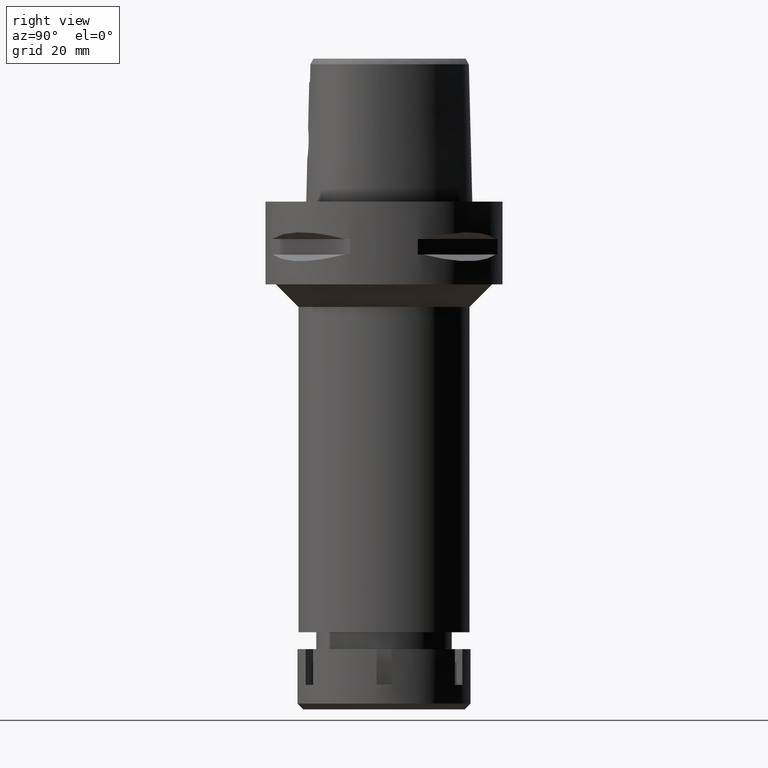
[diagram: clean part render]
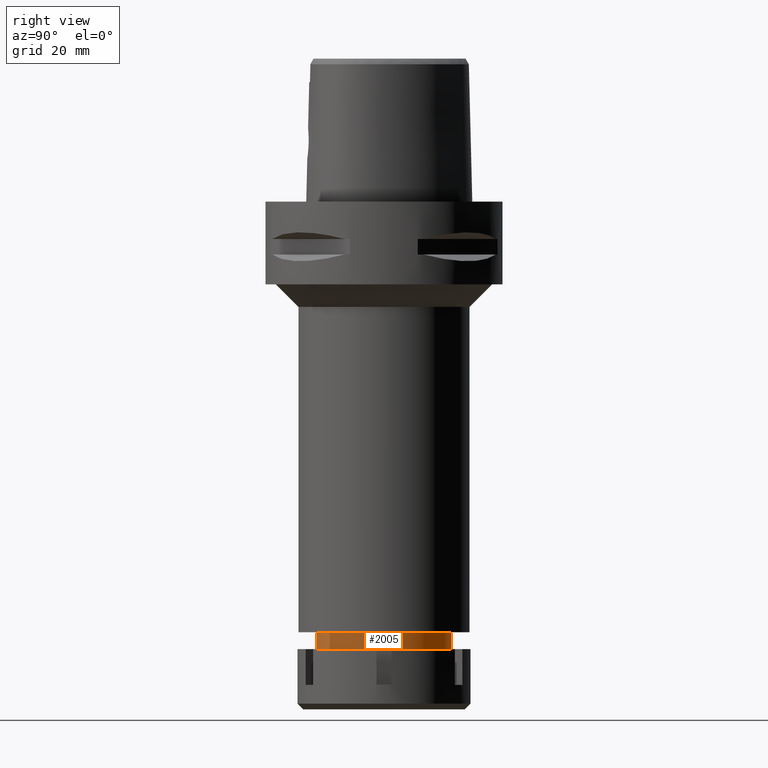
[diagram: same view with one face highlighted and labeled with its STEP entity id]
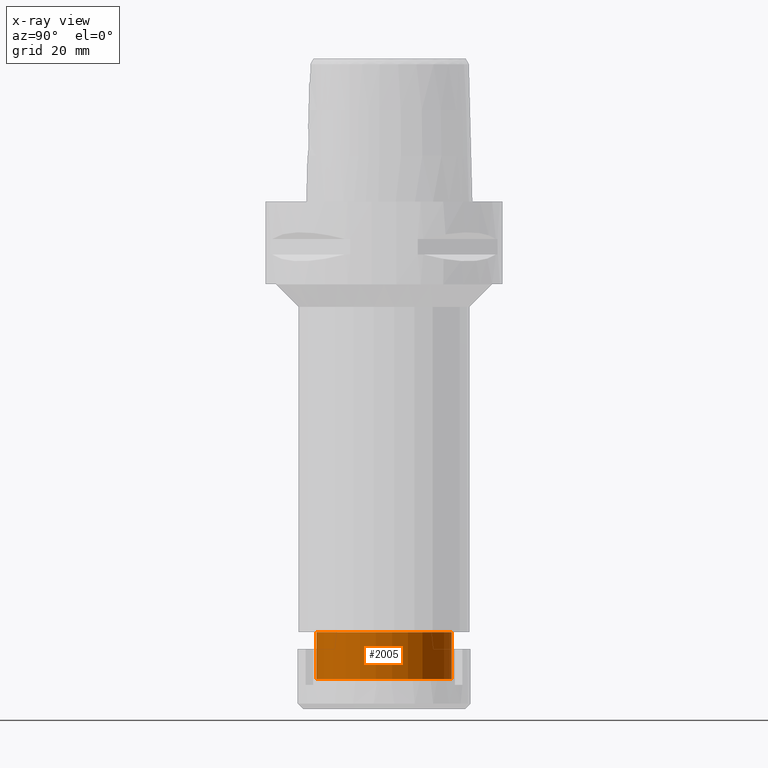
[diagram: x-ray of the same camera — body ghosted, the highlighted face saturated]
A machine part, right view. The second image highlights one B-rep face of the part: STEP entity #2005.
The next image is the same camera in x-ray: the body ghosted, the highlighted face saturated — about 0% of this face is hidden behind the body in this view.
In plain terms, the highlighted cylindrical surface (partial cylindrical patch) has radius 18 mm, axis along (0, 0, -1).
Its self-contained STEP definition (entity closure, byte-faithful):
#22 = CARTESIAN_POINT ( 'NONE',  ( 0.0000000000000000000, 18.00000000000000000, -127.0000000000000000 ) ) ;
#35 = CARTESIAN_POINT ( 'NONE',  ( 0.0000000000000000000, 1.302411870892999789E-14, 6.349999999999999645 ) ) ;
#73 = EDGE_CURVE ( 'NONE', #3236, #3060, #4172, .T. ) ;
#370 = EDGE_CURVE ( 'NONE', #1342, #3977, #5342, .T. ) ;
#809 = CARTESIAN_POINT ( 'NONE',  ( 0.0000000000000000000, -18.00000000000000000, -114.5000000000000000 ) ) ;
#840 = DIRECTION ( 'NONE',  ( 0.0000000000000000000, 0.0000000000000000000, -1.000000000000000000 ) ) ;
#897 = CYLINDRICAL_SURFACE ( 'NONE', #1059, 18.00000000000000000 ) ;
#1059 = AXIS2_PLACEMENT_3D ( 'NONE', #35, #5035, #1186 ) ;
#1186 = DIRECTION ( 'NONE',  ( 0.0000000000000000000, -1.000000000000000000, 0.0000000000000000000 ) ) ;
#1232 = DIRECTION ( 'NONE',  ( 0.0000000000000000000, 1.000000000000000000, 0.0000000000000000000 ) ) ;
#1262 = CARTESIAN_POINT ( 'NONE',  ( 0.0000000000000000000, -18.00000000000000000, -127.0000000000000000 ) ) ;
#1342 = VERTEX_POINT ( 'NONE', #1262 ) ;
#1423 = DIRECTION ( 'NONE',  ( 0.0000000000000000000, 0.0000000000000000000, -1.000000000000000000 ) ) ;
#1659 = FACE_OUTER_BOUND ( 'NONE', #3521, .T. ) ;
#2005 = ADVANCED_FACE ( 'NONE', ( #1659 ), #897, .T. ) ;
#2258 = CARTESIAN_POINT ( 'NONE',  ( 0.0000000000000000000, 18.00000000000000000, -114.5000000000000000 ) ) ;
#2268 = LINE ( 'NONE', #3573, #5435 ) ;
#3060 = VERTEX_POINT ( 'NONE', #809 ) ;
#3236 = VERTEX_POINT ( 'NONE', #2258 ) ;
#3313 = EDGE_CURVE ( 'NONE', #3236, #3977, #5279, .T. ) ;
#3395 = ORIENTED_EDGE ( 'NONE', *, *, #73, .T. ) ;
#3464 = ORIENTED_EDGE ( 'NONE', *, *, #3313, .F. ) ;
#3521 = EDGE_LOOP ( 'NONE', ( #3395, #4529, #4972, #3464 ) ) ;
#3573 = CARTESIAN_POINT ( 'NONE',  ( 0.0000000000000000000, -18.00000000000000000, -114.5000000000000000 ) ) ;
#3897 = DIRECTION ( 'NONE',  ( 0.0000000000000000000, 0.0000000000000000000, 1.000000000000000000 ) ) ;
#3977 = VERTEX_POINT ( 'NONE', #22 ) ;
#4012 = AXIS2_PLACEMENT_3D ( 'NONE', #4271, #840, #1232 ) ;
#4172 = CIRCLE ( 'NONE', #4012, 18.00000000000000000 ) ;
#4271 = CARTESIAN_POINT ( 'NONE',  ( 0.0000000000000000000, 1.302411870892999789E-14, -114.5000000000000000 ) ) ;
#4296 = DIRECTION ( 'NONE',  ( 0.0000000000000000000, 0.0000000000000000000, -1.000000000000000000 ) ) ;
#4392 = CARTESIAN_POINT ( 'NONE',  ( 0.0000000000000000000, 18.00000000000000000, -114.5000000000000000 ) ) ;
#4529 = ORIENTED_EDGE ( 'NONE', *, *, #5467, .T. ) ;
#4807 = DIRECTION ( 'NONE',  ( 0.0000000000000000000, -1.000000000000000000, 0.0000000000000000000 ) ) ;
#4817 = AXIS2_PLACEMENT_3D ( 'NONE', #5162, #3897, #4807 ) ;
#4972 = ORIENTED_EDGE ( 'NONE', *, *, #370, .T. ) ;
#5035 = DIRECTION ( 'NONE',  ( 0.0000000000000000000, 0.0000000000000000000, -1.000000000000000000 ) ) ;
#5162 = CARTESIAN_POINT ( 'NONE',  ( 0.0000000000000000000, 1.302411870892999789E-14, -127.0000000000000000 ) ) ;
#5279 = LINE ( 'NONE', #4392, #5366 ) ;
#5342 = CIRCLE ( 'NONE', #4817, 18.00000000000000000 ) ;
#5366 = VECTOR ( 'NONE', #1423, 1000.000000000000000 ) ;
#5435 = VECTOR ( 'NONE', #4296, 1000.000000000000000 ) ;
#5467 = EDGE_CURVE ( 'NONE', #3060, #1342, #2268, .T. ) ;